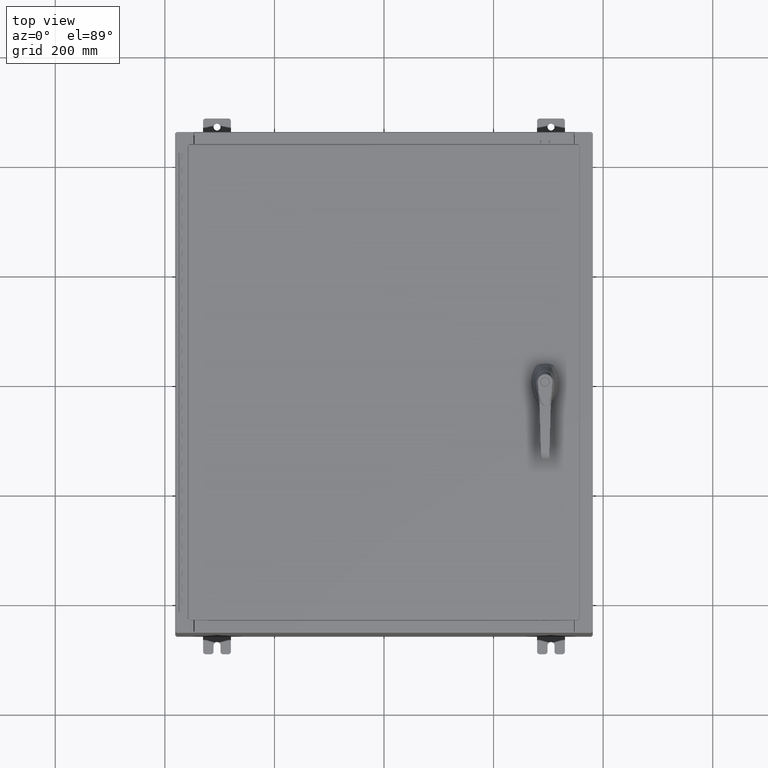
[diagram: clean part render]
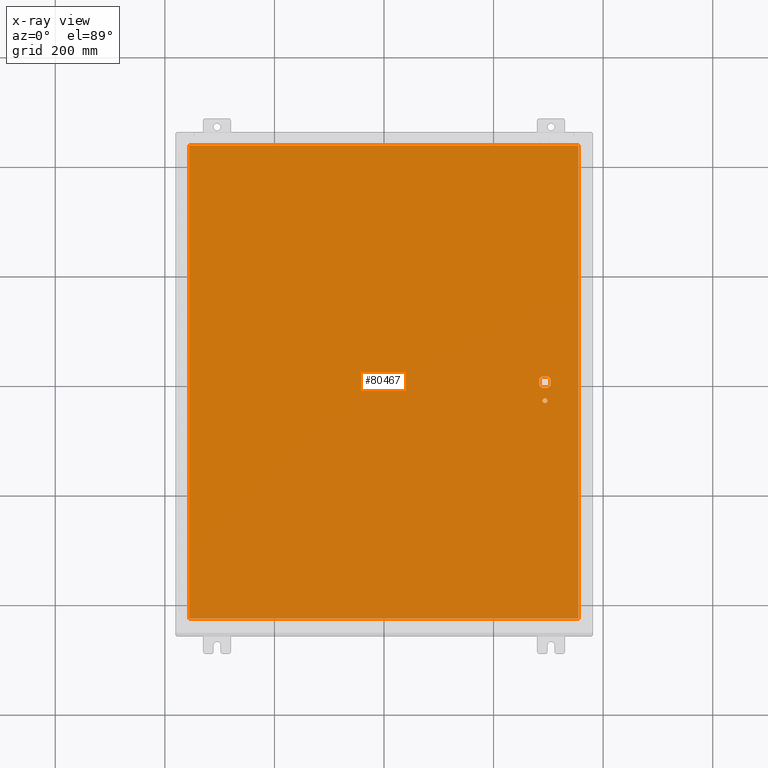
[diagram: x-ray — body ghosted, one internal face saturated and labeled with its STEP entity id]
A machine part, top view, then the same camera in x-ray: the body is ghosted and one INTERNAL B-rep face — a face not visible from any outside direction — is saturated and labeled: STEP entity #80467.
In plain terms, the highlighted planar face has unit normal (0, 0, -1).
Its self-contained STEP definition (entity closure, byte-faithful):
#354 = EDGE_CURVE ( 'NONE', #90454, #96215, #61431, .T. ) ;
#1532 = DIRECTION ( 'NONE',  ( -1.000000000000000000, 0.0000000000000000000, 0.0000000000000000000 ) ) ;
#1841 = DIRECTION ( 'NONE',  ( 1.000000000000000000, -0.0000000000000000000, -0.0000000000000000000 ) ) ;
#2484 = DIRECTION ( 'NONE',  ( 0.0000000000000000000, 0.0000000000000000000, -1.000000000000000000 ) ) ;
#2649 = ORIENTED_EDGE ( 'NONE', *, *, #57226, .T. ) ;
#4398 = VERTEX_POINT ( 'NONE', #45656 ) ;
#4557 = DIRECTION ( 'NONE',  ( 0.0000000000000000000, -1.000000000000000000, 0.0000000000000000000 ) ) ;
#4560 = EDGE_CURVE ( 'NONE', #44386, #88226, #38062, .T. ) ;
#5203 = ORIENTED_EDGE ( 'NONE', *, *, #73142, .T. ) ;
#5273 = LINE ( 'NONE', #20764, #33425 ) ;
#7545 = FACE_BOUND ( 'NONE', #61773, .T. ) ;
#8618 = DIRECTION ( 'NONE',  ( -1.000000000000000000, 0.0000000000000000000, 0.0000000000000000000 ) ) ;
#11597 = CARTESIAN_POINT ( 'NONE',  ( 0.0000000000000000000, 0.0000000000000000000, -0.07470000000000000300 ) ) ;
#12235 = CARTESIAN_POINT ( 'NONE',  ( 11.57799999999999400, 0.0000000000000000000, -0.07470000000000003000 ) ) ;
#12470 = EDGE_LOOP ( 'NONE', ( #33444, #13096 ) ) ;
#12641 = CARTESIAN_POINT ( 'NONE',  ( 11.98099999999992000, 0.2002273707563075900, -0.07470000000000003000 ) ) ;
#12979 = ORIENTED_EDGE ( 'NONE', *, *, #74800, .T. ) ;
#13019 = VERTEX_POINT ( 'NONE', #75248 ) ;
#13096 = ORIENTED_EDGE ( 'NONE', *, *, #72243, .T. ) ;
#13490 = CIRCLE ( 'NONE', #25713, 0.4499999999999168000 ) ;
#13660 = AXIS2_PLACEMENT_3D ( 'NONE', #12235, #78539, #21754 ) ;
#14225 = ORIENTED_EDGE ( 'NONE', *, *, #40480, .T. ) ;
#16114 = CARTESIAN_POINT ( 'NONE',  ( 11.37777262924368300, -0.4029999999999250300, -0.07470000000000003000 ) ) ;
#16303 = VECTOR ( 'NONE', #1841, 39.37007874015748100 ) ;
#17761 = AXIS2_PLACEMENT_3D ( 'NONE', #122297, #65327, #8618 ) ;
#20073 = CARTESIAN_POINT ( 'NONE',  ( 11.57799999999999400, 0.0000000000000000000, -0.07470000000000003000 ) ) ;
#20764 = CARTESIAN_POINT ( 'NONE',  ( 11.98099999999992000, 6.538620706741751200E-014, -0.07470000000000003000 ) ) ;
#21386 = CARTESIAN_POINT ( 'NONE',  ( -13.99030000000000700, 17.00630000000000300, -0.07470000000000000300 ) ) ;
#21754 = DIRECTION ( 'NONE',  ( -1.000000000000000000, -1.776356839400246700E-015, 0.0000000000000000000 ) ) ;
#22236 = VERTEX_POINT ( 'NONE', #114342 ) ;
#25713 = AXIS2_PLACEMENT_3D ( 'NONE', #20073, #86403, #29588 ) ;
#26756 = VERTEX_POINT ( 'NONE', #63593 ) ;
#27248 = CARTESIAN_POINT ( 'NONE',  ( 11.77822737075630300, -0.4029999999999252000, -0.07470000000000003000 ) ) ;
#28592 = EDGE_CURVE ( 'NONE', #13019, #75110, #112885, .T. ) ;
#29588 = DIRECTION ( 'NONE',  ( -1.000000000000000000, -5.329070518200740300E-015, 0.0000000000000000000 ) ) ;
#30332 = CARTESIAN_POINT ( 'NONE',  ( 0.0000000000000000000, 0.4029999999999252000, -0.07470000000000003000 ) ) ;
#32394 = DIRECTION ( 'NONE',  ( -1.000000000000000000, 0.0000000000000000000, 0.0000000000000000000 ) ) ;
#33405 = CARTESIAN_POINT ( 'NONE',  ( 11.57799999999999400, 0.0000000000000000000, -0.07470000000000003000 ) ) ;
#33425 = VECTOR ( 'NONE', #77554, 39.37007874015748100 ) ;
#33444 = ORIENTED_EDGE ( 'NONE', *, *, #80953, .T. ) ;
#33694 = VERTEX_POINT ( 'NONE', #54940 ) ;
#36135 = VECTOR ( 'NONE', #63309, 39.37007874015748100 ) ;
#37490 = EDGE_CURVE ( 'NONE', #75110, #44386, #71595, .T. ) ;
#38062 = CIRCLE ( 'NONE', #114095, 0.4499999999999168000 ) ;
#40425 = ORIENTED_EDGE ( 'NONE', *, *, #122560, .F. ) ;
#40480 = EDGE_CURVE ( 'NONE', #97823, #33694, #95724, .T. ) ;
#42893 = DIRECTION ( 'NONE',  ( -1.000000000000000000, -5.329070518200740300E-015, 0.0000000000000000000 ) ) ;
#42922 = DIRECTION ( 'NONE',  ( -1.000000000000000000, -1.776356839400246700E-015, 0.0000000000000000000 ) ) ;
#44386 = VERTEX_POINT ( 'NONE', #121274 ) ;
#44882 = LINE ( 'NONE', #77660, #67174 ) ;
#45656 = CARTESIAN_POINT ( 'NONE',  ( 13.99029999999999200, -17.00630000000000000, -0.07470000000000000300 ) ) ;
#46295 = VERTEX_POINT ( 'NONE', #12641 ) ;
#46832 = CARTESIAN_POINT ( 'NONE',  ( 11.17500000000006600, 0.2002273707563075900, -0.07470000000000003000 ) ) ;
#47779 = ORIENTED_EDGE ( 'NONE', *, *, #86513, .F. ) ;
#49885 = VECTOR ( 'NONE', #4557, 39.37007874015748100 ) ;
#54940 = CARTESIAN_POINT ( 'NONE',  ( 11.98099999999992000, -0.2002273707563067300, -0.07470000000000003000 ) ) ;
#55361 = LINE ( 'NONE', #101567, #36135 ) ;
#55496 = VECTOR ( 'NONE', #114857, 39.37007874015748100 ) ;
#56410 = CARTESIAN_POINT ( 'NONE',  ( 11.40649999999999200, -1.338000000000000100, -0.07470000000000003000 ) ) ;
#57045 = CARTESIAN_POINT ( 'NONE',  ( 11.17500000000006600, 0.0000000000000000000, -0.07470000000000003000 ) ) ;
#57226 = EDGE_CURVE ( 'NONE', #88226, #97823, #55361, .T. ) ;
#58254 = DIRECTION ( 'NONE',  ( -0.0000000000000000000, -0.0000000000000000000, 1.000000000000000000 ) ) ;
#59207 = PLANE ( 'NONE',  #92992 ) ;
#61431 = LINE ( 'NONE', #112533, #55496 ) ;
#61437 = ORIENTED_EDGE ( 'NONE', *, *, #28592, .T. ) ;
#61557 = VERTEX_POINT ( 'NONE', #56410 ) ;
#61773 = EDGE_LOOP ( 'NONE', ( #14225, #101753, #5203, #12979, #61437, #94910, #63739, #2649 ) ) ;
#62024 = CARTESIAN_POINT ( 'NONE',  ( 13.99029999999999200, 17.00630000000000300, -0.07470000000000000300 ) ) ;
#62372 = EDGE_CURVE ( 'NONE', #22236, #4398, #91973, .T. ) ;
#63136 = LINE ( 'NONE', #30332, #110765 ) ;
#63309 = DIRECTION ( 'NONE',  ( 1.000000000000000000, 0.0000000000000000000, 0.0000000000000000000 ) ) ;
#63593 = CARTESIAN_POINT ( 'NONE',  ( 11.74949999999999400, -1.338000000000000100, -0.07470000000000003000 ) ) ;
#63739 = ORIENTED_EDGE ( 'NONE', *, *, #4560, .T. ) ;
#65327 = DIRECTION ( 'NONE',  ( -0.0000000000000000000, -0.0000000000000000000, 1.000000000000000000 ) ) ;
#65660 = VECTOR ( 'NONE', #66588, 39.37007874015748100 ) ;
#66588 = DIRECTION ( 'NONE',  ( 0.0000000000000000000, -1.000000000000000000, 0.0000000000000000000 ) ) ;
#67174 = VECTOR ( 'NONE', #68089, 39.37007874015748100 ) ;
#68089 = DIRECTION ( 'NONE',  ( 0.0000000000000000000, 1.000000000000000000, 0.0000000000000000000 ) ) ;
#68396 = EDGE_CURVE ( 'NONE', #46295, #33694, #5273, .T. ) ;
#68740 = DIRECTION ( 'NONE',  ( -1.000000000000000000, 0.0000000000000000000, -0.0000000000000000000 ) ) ;
#70827 = CARTESIAN_POINT ( 'NONE',  ( -13.99030000000000700, 17.00630000000000000, -0.07470000000000019700 ) ) ;
#71595 = LINE ( 'NONE', #57045, #65660 ) ;
#72243 = EDGE_CURVE ( 'NONE', #61557, #26756, #114627, .T. ) ;
#72362 = DIRECTION ( 'NONE',  ( -0.0000000000000000000, -0.0000000000000000000, 1.000000000000000000 ) ) ;
#73142 = EDGE_CURVE ( 'NONE', #46295, #99108, #13490, .T. ) ;
#74558 = ORIENTED_EDGE ( 'NONE', *, *, #354, .F. ) ;
#74800 = EDGE_CURVE ( 'NONE', #99108, #13019, #63136, .T. ) ;
#75110 = VERTEX_POINT ( 'NONE', #46832 ) ;
#75248 = CARTESIAN_POINT ( 'NONE',  ( 11.37777262924368300, 0.4029999999999252000, -0.07470000000000003000 ) ) ;
#77554 = DIRECTION ( 'NONE',  ( 5.457491617345625000E-015, -1.000000000000000000, 0.0000000000000000000 ) ) ;
#77660 = CARTESIAN_POINT ( 'NONE',  ( 13.99029999999999200, -17.00630000000000000, -0.07470000000000019700 ) ) ;
#78107 = LINE ( 'NONE', #70827, #49885 ) ;
#78539 = DIRECTION ( 'NONE',  ( -0.0000000000000000000, -0.0000000000000000000, 1.000000000000000000 ) ) ;
#80179 = FACE_OUTER_BOUND ( 'NONE', #119871, .T. ) ;
#80467 = ADVANCED_FACE ( 'NONE', ( #108509, #80179, #7545 ), #59207, .T. ) ;
#80502 = ORIENTED_EDGE ( 'NONE', *, *, #62372, .F. ) ;
#80953 = EDGE_CURVE ( 'NONE', #26756, #61557, #100968, .T. ) ;
#82330 = CARTESIAN_POINT ( 'NONE',  ( 11.57799999999999400, 0.0000000000000000000, -0.07470000000000003000 ) ) ;
#86403 = DIRECTION ( 'NONE',  ( -0.0000000000000000000, -0.0000000000000000000, 1.000000000000000000 ) ) ;
#86513 = EDGE_CURVE ( 'NONE', #96215, #22236, #78107, .T. ) ;
#88226 = VERTEX_POINT ( 'NONE', #16114 ) ;
#90454 = VERTEX_POINT ( 'NONE', #62024 ) ;
#91973 = LINE ( 'NONE', #115526, #16303 ) ;
#92992 = AXIS2_PLACEMENT_3D ( 'NONE', #11597, #2484, #68740 ) ;
#94910 = ORIENTED_EDGE ( 'NONE', *, *, #37490, .T. ) ;
#95724 = CIRCLE ( 'NONE', #13660, 0.4499999999999168000 ) ;
#96215 = VERTEX_POINT ( 'NONE', #21386 ) ;
#97823 = VERTEX_POINT ( 'NONE', #27248 ) ;
#98694 = CARTESIAN_POINT ( 'NONE',  ( 11.77822737075630300, 0.4029999999999250300, -0.07470000000000003000 ) ) ;
#99108 = VERTEX_POINT ( 'NONE', #98694 ) ;
#99805 = DIRECTION ( 'NONE',  ( -0.0000000000000000000, -0.0000000000000000000, 1.000000000000000000 ) ) ;
#100968 = CIRCLE ( 'NONE', #109777, 0.1715000000000011500 ) ;
#101567 = CARTESIAN_POINT ( 'NONE',  ( 0.0000000000000000000, -0.4029999999999252000, -0.07470000000000003000 ) ) ;
#101753 = ORIENTED_EDGE ( 'NONE', *, *, #68396, .F. ) ;
#101954 = AXIS2_PLACEMENT_3D ( 'NONE', #33405, #99805, #42893 ) ;
#108509 = FACE_BOUND ( 'NONE', #12470, .T. ) ;
#109777 = AXIS2_PLACEMENT_3D ( 'NONE', #115213, #58254, #1532 ) ;
#110765 = VECTOR ( 'NONE', #32394, 39.37007874015748100 ) ;
#112533 = CARTESIAN_POINT ( 'NONE',  ( 13.99029999999999200, 17.00630000000000300, -0.07470000000000129300 ) ) ;
#112885 = CIRCLE ( 'NONE', #101954, 0.4499999999999168000 ) ;
#114095 = AXIS2_PLACEMENT_3D ( 'NONE', #82330, #72362, #42922 ) ;
#114342 = CARTESIAN_POINT ( 'NONE',  ( -13.99030000000000700, -17.00630000000000000, -0.07470000000000000300 ) ) ;
#114627 = CIRCLE ( 'NONE', #17761, 0.1715000000000011500 ) ;
#114857 = DIRECTION ( 'NONE',  ( -1.000000000000000000, -0.0000000000000000000, -0.0000000000000000000 ) ) ;
#115213 = CARTESIAN_POINT ( 'NONE',  ( 11.57799999999999400, -1.338000000000000100, -0.07470000000000003000 ) ) ;
#115526 = CARTESIAN_POINT ( 'NONE',  ( -13.99030000000000700, -17.00630000000000000, -0.07470000000000019700 ) ) ;
#119871 = EDGE_LOOP ( 'NONE', ( #40425, #80502, #47779, #74558 ) ) ;
#121274 = CARTESIAN_POINT ( 'NONE',  ( 11.17500000000006600, -0.2002273707563079800, -0.07470000000000003000 ) ) ;
#122297 = CARTESIAN_POINT ( 'NONE',  ( 11.57799999999999400, -1.338000000000000100, -0.07470000000000003000 ) ) ;
#122560 = EDGE_CURVE ( 'NONE', #4398, #90454, #44882, .T. ) ;